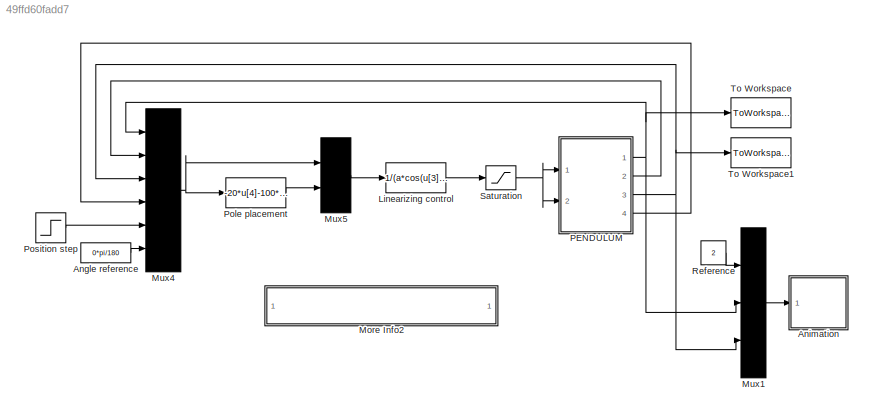
MODEL slx_49ffd60fadd7
KIND model
CONFIG AbsTol = 1e-3
CONFIG EnableMultiTasking = off
CONFIG FixedStep = 0.001
CONFIG MaxStep = 0.01
CONFIG MinStep = auto
CONFIG RelTol = 1e-3
CONFIG SampleTimeConstraint = Unconstrained
CONFIG SolverName = ode5
CONFIG StartTime = 0
CONFIG StopTime = 200
BLOCK [Constant] Angle reference
  Value = 0*pi/180
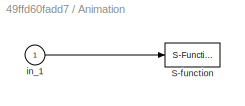
BLOCK [SubSystem] Animation
  Ports = [1]
  RequestExecContextInheritance = off
BLOCK [S-Function] Animation/S-function
  DeleteFcn = pendan([],[],[],'DeleteBlock');
  EnableBusSupport = off
  FunctionName = pendan
  Parameters = RefBlock
  Ports = [1]
  SFcnIsStateOwnerBlock = off
  SFunctionDeploymentMode = off
BLOCK [Inport] Animation/in_1
BLOCK [Fcn] Linearizing control
  Expr = 1/(a*cos(u[3])/m)*(-((J+m*l^2)/(m*l)-a*l*power(cos(u[3]),2))*u[7]-a*l*cos(u[3])*sin(u[3])*u[4]^2+g*sin(u[3]))+fc*u[2]
BLOCK [SubSystem] More Info2
  OpenFcn = cipendco_student
  Ports = []
  RequestExecContextInheritance = off
  ShowPortLabels = none
BLOCK [Mux] Mux1
  Inputs = 3
  Ports = [3, 1]
BLOCK [Mux] Mux4
  Inputs = 6
  Ports = [6, 1]
BLOCK [Mux] Mux5
  Inputs = 2
  Ports = [2, 1]
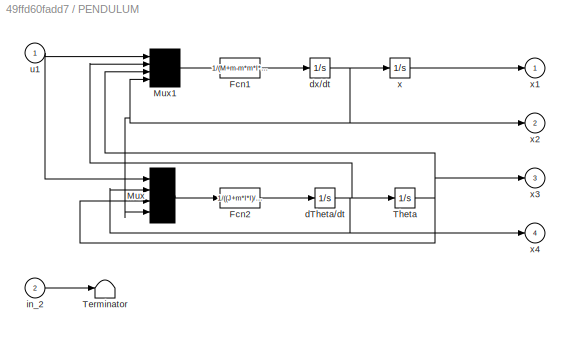
BLOCK [SubSystem] PENDULUM
  Ports = [2, 4]
  RequestExecContextInheritance = off
BLOCK [Fcn] PENDULUM/Fcn1
  Expr = 1/(M+m-m*m*l*l/(J+m*l*l)*power(cos(u[3]),2))*(m*sin(u[3])*(l*power(u[2],2)-m*l*l*g*cos(u[3])/(J+m*l*l))+u[1]-fc*u[4])
BLOCK [Fcn] PENDULUM/Fcn2
  Expr = 1/((J+m*l*l)/(m*l)-a*l*power(cos(u[3]),2))*(-a*l*sin(u[3])*cos(u[3])*power(u[2],2)+g*sin(u[3])-a/m*cos(u[3])*(u[1]-fc*u[4]))
BLOCK [Mux] PENDULUM/Mux
  Ports = [4, 1]
BLOCK [Mux] PENDULUM/Mux1
  Ports = [4, 1]
BLOCK [Terminator] PENDULUM/Terminator
BLOCK [Integrator] PENDULUM/Theta
  InitialCondition = 0.2
  Ports = [1, 1]
BLOCK [Integrator] PENDULUM/dTheta//dt
  Ports = [1, 1]
BLOCK [Integrator] PENDULUM/dx//dt
  Ports = [1, 1]
BLOCK [Inport] PENDULUM/in_2
  Port = 2
BLOCK [Inport] PENDULUM/u1
BLOCK [Integrator] PENDULUM/x
  InitialCondition = 0.5
  Ports = [1, 1]
BLOCK [Outport] PENDULUM/x1
  VectorParamsAs1DForOutWhenUnconnected = off
BLOCK [Outport] PENDULUM/x2
  Port = 2
  VectorParamsAs1DForOutWhenUnconnected = off
BLOCK [Outport] PENDULUM/x3
  Port = 3
  VectorParamsAs1DForOutWhenUnconnected = off
BLOCK [Outport] PENDULUM/x4
  Port = 4
  VectorParamsAs1DForOutWhenUnconnected = off
BLOCK [Fcn] Pole placement
  Expr = -20*u[4]-100*(u[3]-u[6])-.319*(u[1]-u[5])
BLOCK [Step] Position step
  After = 2
  Before = -2
  SampleTime = 0
  Time = 40
BLOCK [Constant] Reference
  Value = 2
BLOCK [Saturate] Saturation
  LowerLimit = -24
  UpperLimit = 24
BLOCK [ToWorkspace] To Workspace
  MaxDataPoints = inf
  Ports = [1]
  SampleTime = -1
  VariableName = x1
BLOCK [ToWorkspace] To Workspace1
  MaxDataPoints = inf
  Ports = [1]
  SampleTime = -1
  VariableName = x3
LINE Angle reference:1 -> Mux4:6
LINE Animation/in_1:1 -> Animation/S-function:1
LINE Linearizing control:1 -> Saturation:1
LINE Mux1:1 -> Animation:1
NET Mux4:1 -> Mux5:1, Pole placement:1
LINE Mux5:1 -> Linearizing control:1
LINE PENDULUM/Fcn1:1 -> PENDULUM/dx//dt:1
LINE PENDULUM/Fcn2:1 -> PENDULUM/dTheta//dt:1
LINE PENDULUM/Mux1:1 -> PENDULUM/Fcn1:1
LINE PENDULUM/Mux:1 -> PENDULUM/Fcn2:1
NET PENDULUM/Theta:1 -> PENDULUM/Mux1:3, PENDULUM/Mux:3, PENDULUM/x3:1
NET PENDULUM/dTheta//dt:1 -> PENDULUM/Mux1:2, PENDULUM/Mux:2, PENDULUM/Theta:1, PENDULUM/x4:1
NET PENDULUM/dx//dt:1 -> PENDULUM/Mux1:4, PENDULUM/Mux:4, PENDULUM/x2:1, PENDULUM/x:1
LINE PENDULUM/in_2:1 -> PENDULUM/Terminator:1
NET PENDULUM/u1:1 -> PENDULUM/Mux1:1, PENDULUM/Mux:1
LINE PENDULUM/x:1 -> PENDULUM/x1:1
NET PENDULUM:1 -> Mux1:2, Mux4:1, To Workspace:1
LINE PENDULUM:2 -> Mux4:2
NET PENDULUM:3 -> Mux1:3, Mux4:3, To Workspace1:1
LINE PENDULUM:4 -> Mux4:4
LINE Pole placement:1 -> Mux5:2
LINE Position step:1 -> Mux4:5
LINE Reference:1 -> Mux1:1
NET Saturation:1 -> PENDULUM:1, PENDULUM:2
note: NET lines group one-source signal fan-out (src -> all destinations, sorted); 1:1 wires keep LINE
